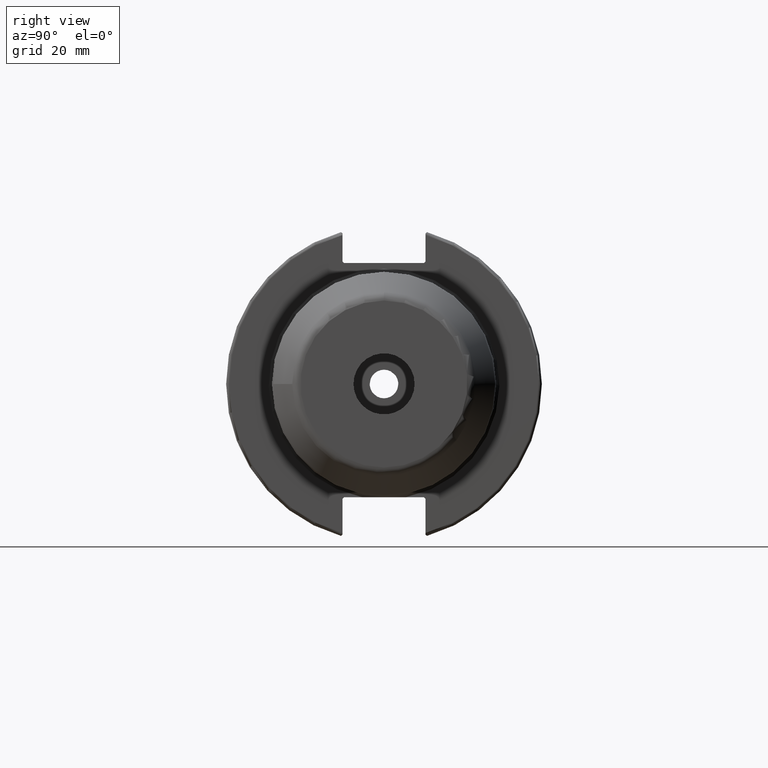
[diagram: clean part render]
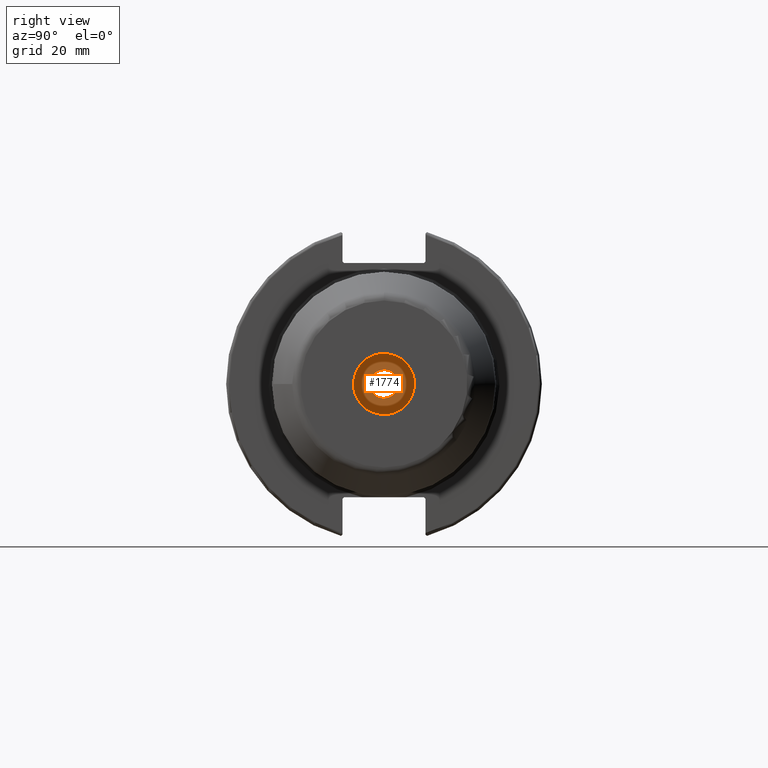
[diagram: same view with one face highlighted and labeled with its STEP entity id]
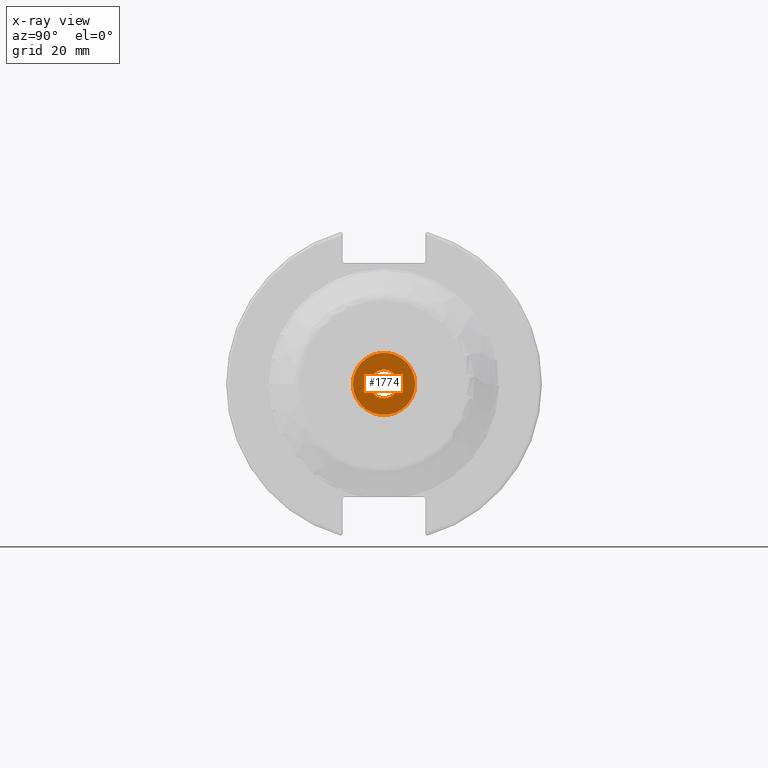
[diagram: x-ray of the same camera — body ghosted, the highlighted face saturated]
A machine part, right view. The second image highlights one B-rep face of the part: STEP entity #1774.
The next image is the same camera in x-ray: the body ghosted, the highlighted face saturated — about 4% of this face is hidden behind the body in this view.
In plain terms, the highlighted planar face has unit normal (1, 0, 0).
Its self-contained STEP definition (entity closure, byte-faithful):
#34=PLANE('',#1958);
#107=FACE_BOUND('',#294,.T.);
#188=FACE_OUTER_BOUND('',#293,.T.);
#293=EDGE_LOOP('',(#1313));
#294=EDGE_LOOP('',(#1314));
#588=CIRCLE('',#1875,4.458734);
#646=CIRCLE('',#1957,9.69999999999999);
#705=VERTEX_POINT('',#2642);
#760=VERTEX_POINT('',#2919);
#890=EDGE_CURVE('',#705,#705,#588,.T.);
#969=EDGE_CURVE('',#760,#760,#646,.T.);
#1313=ORIENTED_EDGE('',*,*,#969,.T.);
#1314=ORIENTED_EDGE('',*,*,#890,.T.);
#1774=ADVANCED_FACE('',(#188,#107),#34,.T.);
#1875=AXIS2_PLACEMENT_3D('',#2643,#2099,#2100);
#1957=AXIS2_PLACEMENT_3D('',#2921,#2276,#2277);
#1958=AXIS2_PLACEMENT_3D('',#2922,#2278,#2279);
#2099=DIRECTION('center_axis',(-1.,0.,0.));
#2100=DIRECTION('ref_axis',(0.,0.,-1.));
#2276=DIRECTION('center_axis',(1.,0.,0.));
#2277=DIRECTION('ref_axis',(0.,0.,-1.));
#2278=DIRECTION('center_axis',(1.,0.,0.));
#2279=DIRECTION('ref_axis',(0.,0.,-1.));
#2642=CARTESIAN_POINT('',(28.,-5.46037432134947E-16,4.458734));
#2643=CARTESIAN_POINT('Origin',(28.,0.,0.));
#2919=CARTESIAN_POINT('',(28.,-9.7,-1.18790739517293E-15));
#2921=CARTESIAN_POINT('Origin',(28.,0.,0.));
#2922=CARTESIAN_POINT('Origin',(28.,-6.38136617862715E-15,0.));